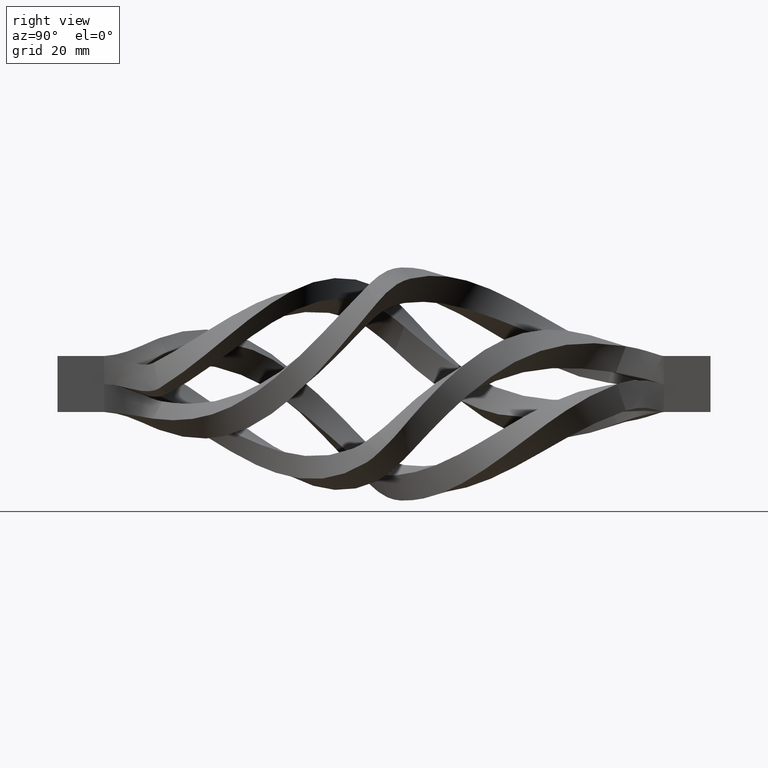
[diagram: clean part render]
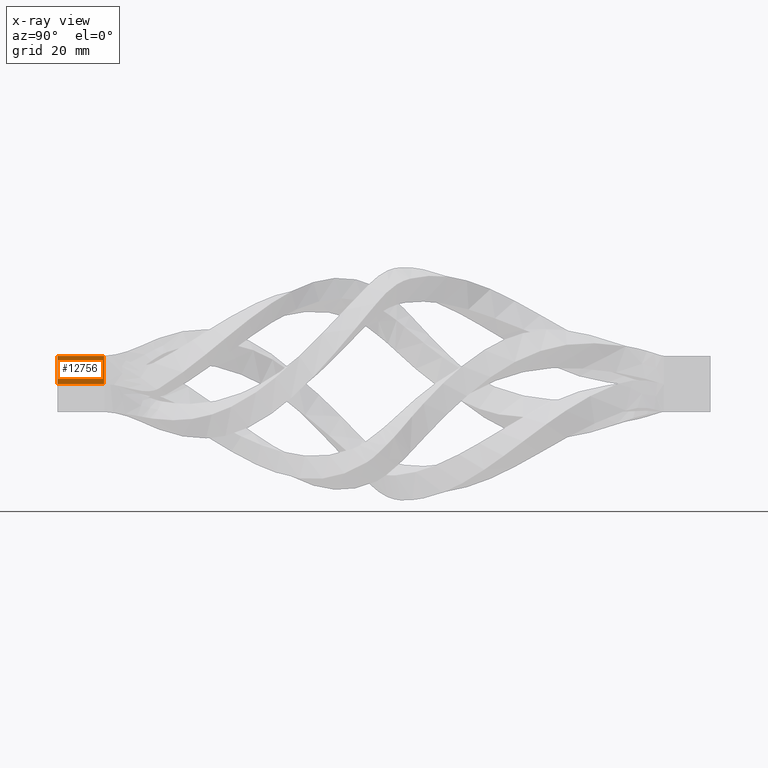
[diagram: x-ray — body ghosted, one internal face saturated and labeled with its STEP entity id]
A machine part, right view, then the same camera in x-ray: the body is ghosted and one INTERNAL B-rep face — a face not visible from any outside direction — is saturated and labeled: STEP entity #12756.
In plain terms, the highlighted planar face has unit normal (-1, 0, 0).
Its self-contained STEP definition (entity closure, byte-faithful):
#1094 = EDGE_CURVE ( 'NONE', #11332, #4042, #5415, .T. ) ;
#1559 = AXIS2_PLACEMENT_3D ( 'NONE', #2294, #11481, #15548 ) ;
#2294 = CARTESIAN_POINT ( 'NONE',  ( 0.000000000000000000, -69.99999999999998579, 0.000000000000000000 ) ) ;
#2824 = EDGE_CURVE ( 'NONE', #4461, #8182, #14719, .T. ) ;
#4036 = DIRECTION ( 'NONE',  ( 0.000000000000000000, 1.000000000000000000, 0.000000000000000000 ) ) ;
#4042 = VERTEX_POINT ( 'NONE', #6021 ) ;
#4461 = VERTEX_POINT ( 'NONE', #11541 ) ;
#4760 = CARTESIAN_POINT ( 'NONE',  ( 7.347880794884119736E-16, -60.00000000000000000, 6.000000000000000000 ) ) ;
#5415 = LINE ( 'NONE', #5924, #15657 ) ;
#5618 = VECTOR ( 'NONE', #10512, 1000.000000000000000 ) ;
#5676 = ORIENTED_EDGE ( 'NONE', *, *, #10560, .F. ) ;
#5924 = CARTESIAN_POINT ( 'NONE',  ( 0.000000000000000000, -69.99999999999998579, 0.000000000000000000 ) ) ;
#6019 = VECTOR ( 'NONE', #13806, 1000.000000000000000 ) ;
#6021 = CARTESIAN_POINT ( 'NONE',  ( 0.000000000000000000, -60.00000000000000000, 0.000000000000000000 ) ) ;
#6570 = CARTESIAN_POINT ( 'NONE',  ( 0.000000000000000000, -60.00000000000000000, 0.000000000000000000 ) ) ;
#8182 = VERTEX_POINT ( 'NONE', #4760 ) ;
#8588 = VECTOR ( 'NONE', #4036, 1000.000000000000000 ) ;
#9011 = ORIENTED_EDGE ( 'NONE', *, *, #1094, .F. ) ;
#9095 = LINE ( 'NONE', #6570, #5618 ) ;
#9867 = CARTESIAN_POINT ( 'NONE',  ( 0.000000000000000000, -69.99999999999998579, 0.000000000000000000 ) ) ;
#10375 = EDGE_CURVE ( 'NONE', #11332, #4461, #16880, .T. ) ;
#10512 = DIRECTION ( 'NONE',  ( 1.224646799147353207E-16, 0.000000000000000000, 1.000000000000000000 ) ) ;
#10560 = EDGE_CURVE ( 'NONE', #4042, #8182, #9095, .T. ) ;
#11332 = VERTEX_POINT ( 'NONE', #14411 ) ;
#11481 = DIRECTION ( 'NONE',  ( -1.000000000000000000, 0.000000000000000000, 1.224646799147353207E-16 ) ) ;
#11541 = CARTESIAN_POINT ( 'NONE',  ( 7.347880794884119736E-16, -69.99999999999998579, 6.000000000000000000 ) ) ;
#11935 = CARTESIAN_POINT ( 'NONE',  ( 7.347880794884119736E-16, -69.99999999999998579, 6.000000000000000000 ) ) ;
#12655 = ORIENTED_EDGE ( 'NONE', *, *, #10375, .T. ) ;
#12745 = PLANE ( 'NONE',  #1559 ) ;
#12756 = ADVANCED_FACE ( 'NONE', ( #14609 ), #12745, .T. ) ;
#13806 = DIRECTION ( 'NONE',  ( 1.224646799147353207E-16, 0.000000000000000000, 1.000000000000000000 ) ) ;
#14411 = CARTESIAN_POINT ( 'NONE',  ( 0.000000000000000000, -69.99999999999998579, 0.000000000000000000 ) ) ;
#14609 = FACE_OUTER_BOUND ( 'NONE', #15274, .T. ) ;
#14719 = LINE ( 'NONE', #11935, #8588 ) ;
#14970 = DIRECTION ( 'NONE',  ( 0.000000000000000000, 1.000000000000000000, 0.000000000000000000 ) ) ;
#15274 = EDGE_LOOP ( 'NONE', ( #5676, #9011, #12655, #15341 ) ) ;
#15341 = ORIENTED_EDGE ( 'NONE', *, *, #2824, .T. ) ;
#15548 = DIRECTION ( 'NONE',  ( 1.224646799147353207E-16, 0.000000000000000000, 1.000000000000000000 ) ) ;
#15657 = VECTOR ( 'NONE', #14970, 1000.000000000000000 ) ;
#16880 = LINE ( 'NONE', #9867, #6019 ) ;